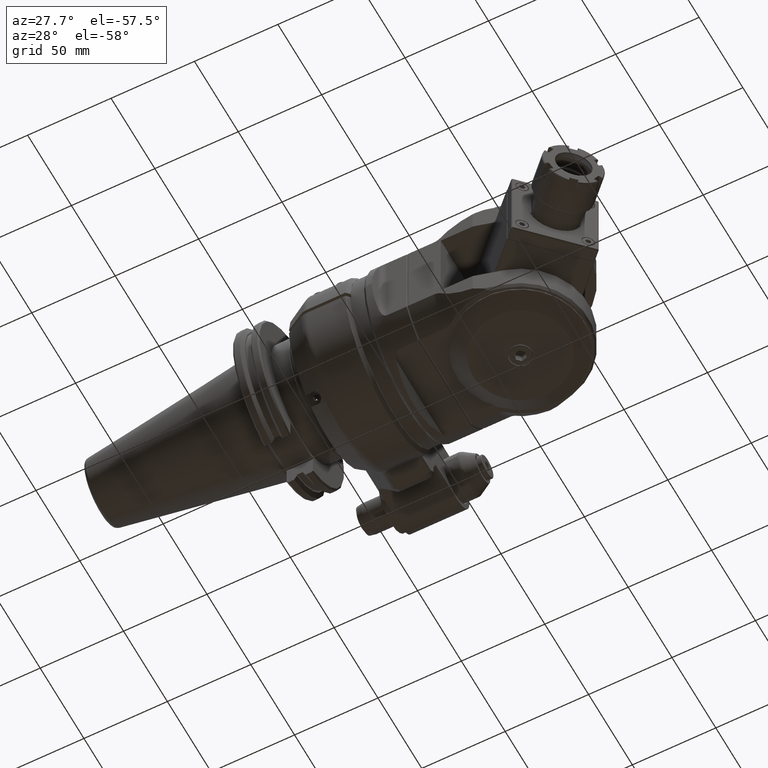
[diagram: clean part render]
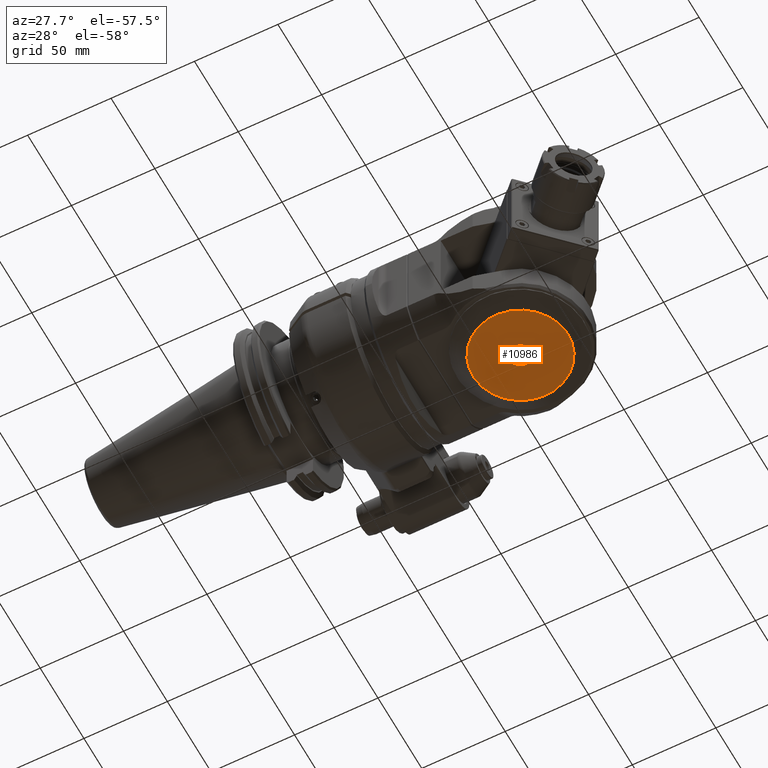
[diagram: same view with one face highlighted and labeled with its STEP entity id]
A machine part, auxiliary view. The second image highlights one B-rep face of the part: STEP entity #10986.
In plain terms, the highlighted planar face has unit normal (-0, 0, 1).
Its self-contained STEP definition (entity closure, byte-faithful):
#210=FACE_BOUND('',#2143,.T.);
#700=PLANE('',#12188);
#1420=FACE_OUTER_BOUND('',#2142,.T.);
#2142=EDGE_LOOP('',(#9797));
#2143=EDGE_LOOP('',(#9798));
#2680=CIRCLE('',#12187,28.47372055837);
#2681=CIRCLE('',#12189,6.75);
#5355=VERTEX_POINT('',#60179);
#5356=VERTEX_POINT('',#60183);
#6865=EDGE_CURVE('',#5355,#5355,#2680,.T.);
#6866=EDGE_CURVE('',#5356,#5356,#2681,.T.);
#9797=ORIENTED_EDGE('',*,*,#6865,.T.);
#9798=ORIENTED_EDGE('',*,*,#6866,.T.);
#10986=ADVANCED_FACE('',(#1420,#210),#700,.F.);
#12187=AXIS2_PLACEMENT_3D('',#60181,#14977,#14978);
#12188=AXIS2_PLACEMENT_3D('',#60182,#14979,#14980);
#12189=AXIS2_PLACEMENT_3D('',#60184,#14981,#14982);
#14977=DIRECTION('center_axis',(0.,0.,1.));
#14978=DIRECTION('ref_axis',(-1.,0.,0.));
#14979=DIRECTION('center_axis',(0.,0.,-1.));
#14980=DIRECTION('ref_axis',(-1.,0.,0.));
#14981=DIRECTION('center_axis',(0.,0.,-1.));
#14982=DIRECTION('ref_axis',(1.,0.,0.));
#60179=CARTESIAN_POINT('',(135.473720558371,-3.48702507416257E-15,46.5000000000024));
#60181=CARTESIAN_POINT('Origin',(107.,0.,46.5));
#60182=CARTESIAN_POINT('Origin',(77.35,0.,46.5));
#60183=CARTESIAN_POINT('',(100.25,0.,46.5));
#60184=CARTESIAN_POINT('Origin',(107.,0.,46.5));